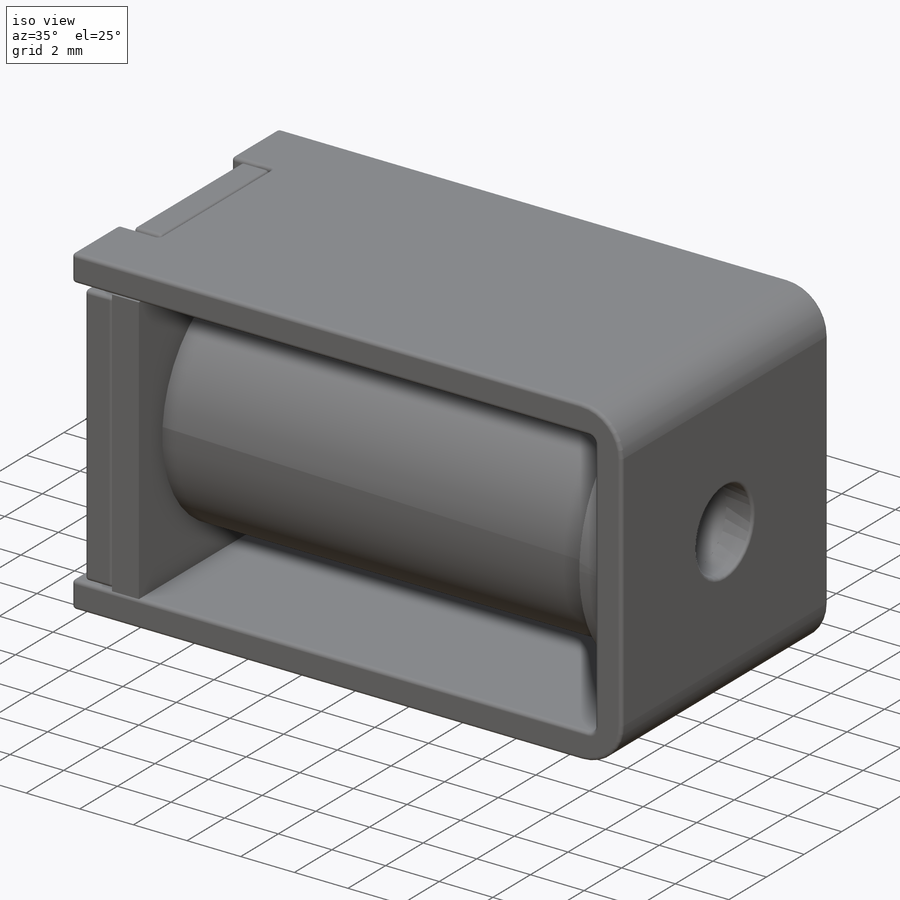
[diagram: iso view]
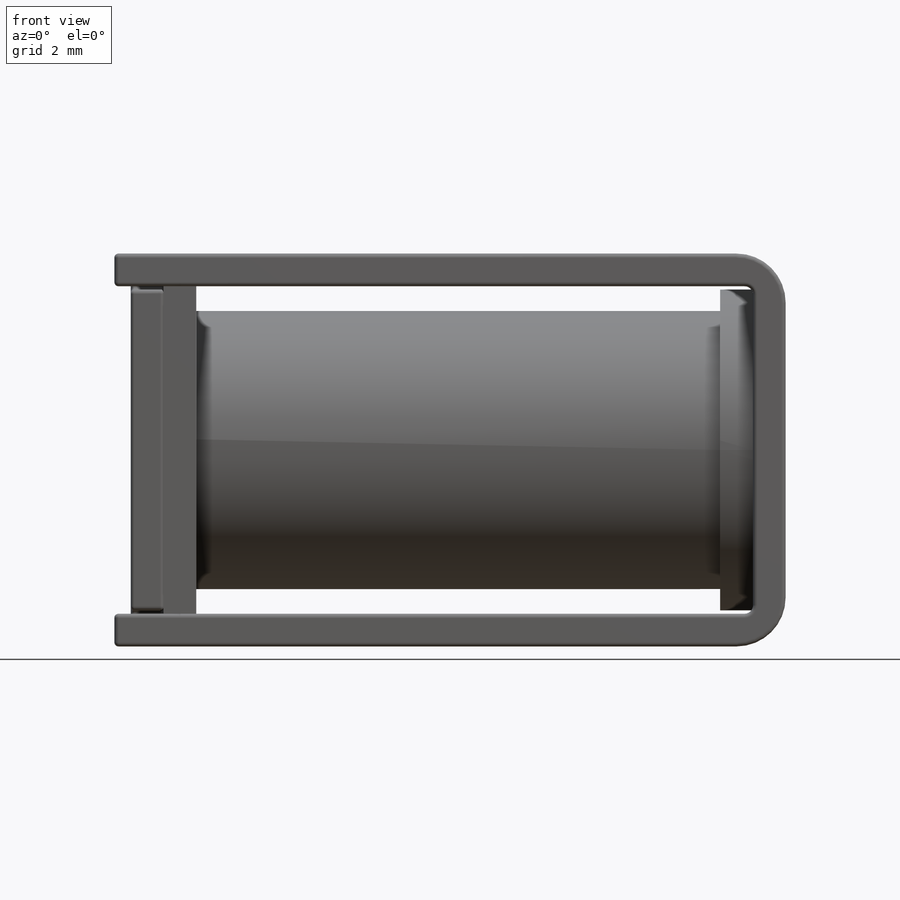
[diagram: front view]
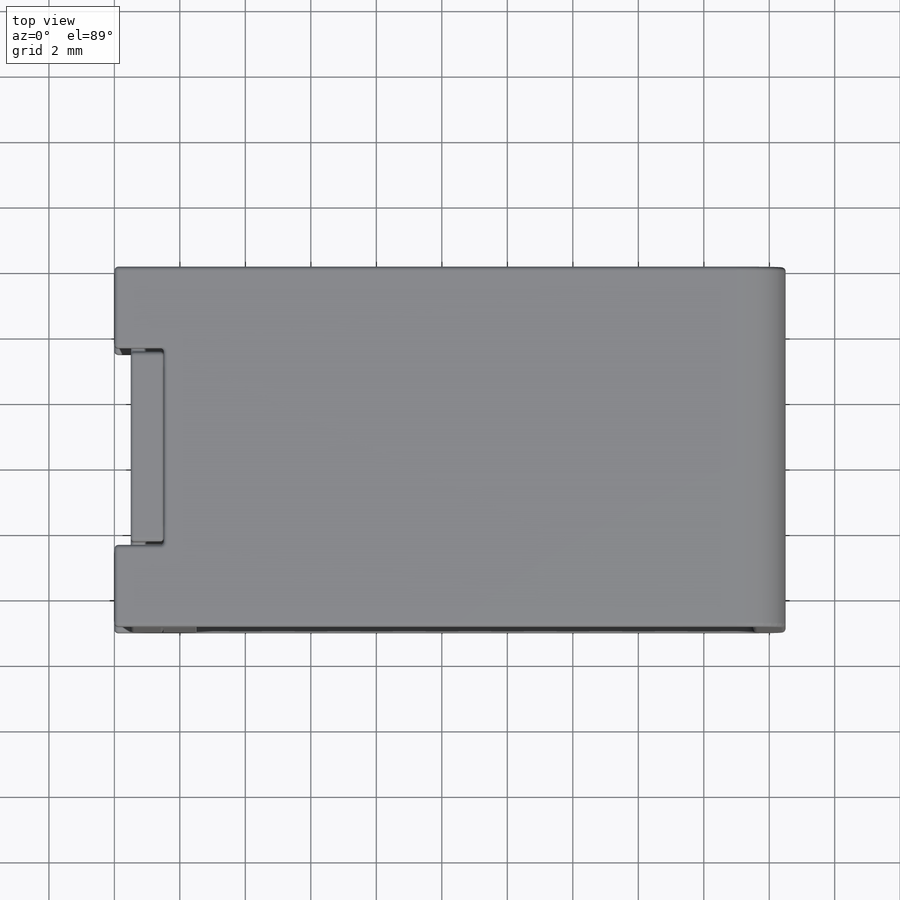
[diagram: top view]
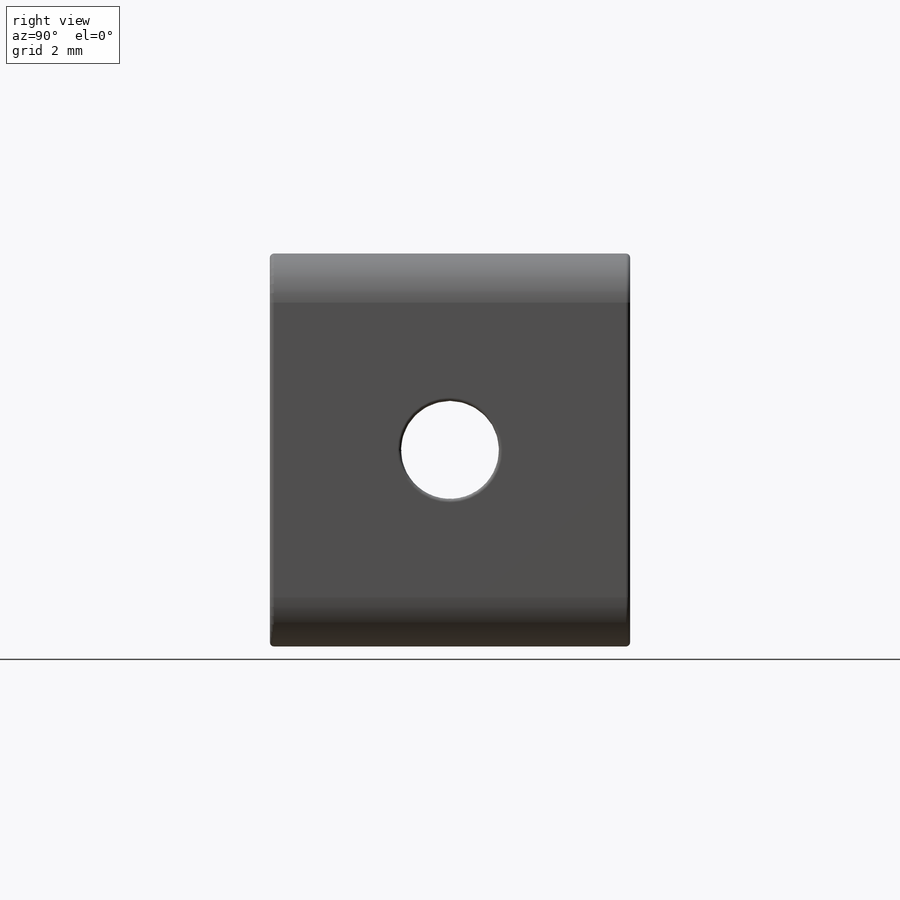
[diagram: right view]
SOLIDWORKS PART (.sldprt)
format: sldprt  version: not decoded by parser v0  size: 729,088 bytes
history: native  units: mm
features: fillet x10, sketch x8, extrude x5, cut_extrude x3, material x1 (+12 scaffold rows collapsed)
feature tree (39):
  scaffold x12  (default folders/planes/origin — collapsed)
  material  "Material <not specified>"
  sketch  "Sketch1"  dims[D1=20.5mm D2=12.0mm D3=1.0mm D4=1.0mm]
  extrude  "Boss-Extrude1"  Depth=11mm
  sketch  "Sketch2"  dims[c1.D1=6.0mm c1.D2=~1.771901mm c1.D3=~3.228099mm c2.D1=3.0mm c2.D2=1.0mm c2.D3=5.5mm c3.D2=2.5mm c3.D3=1.0mm c3.D4=3.0mm c3.D1=3.0mm c4.D4=6.0mm c4.D5=~5.963785mm]
  cut_extrude  "Cut-Extrude1"  Depth=1.5mm
  sketch  "Sketch3"  dims[D1=0.1mm D2=0.1mm D3=0.1mm D4=0.1mm]
  extrude  "Boss-Extrude2"  Depth=1mm
  fillet  "Fillet1"  Radius=0.125mm
  fillet  "Fillet2"  Radius=0.1mm
  fillet  "Fillet3"  Radius=0.1mm
  fillet  "Fillet4"  Radius=0.1mm
  fillet  "Fillet6"  Radius=0.1mm
  fillet  "Fillet8"  Radius=1.5mm
  fillet  "Fillet9"  Radius=0.25mm
  fillet  "Fillet10"  Radius=0.125mm
  sketch  "Sketch4"  dims[D1=10.0mm D2=11.0mm]
  extrude  "Boss-Extrude3"  Depth=1mm
  sketch  "Sketch6"  dims[D1=~1.945926mm]
  cut_extrude  "Cut-Extrude3"  Depth=2mm
  sketch  "Sketch7"  dims[c1.D1=9.8mm c1.D2=9.8mm c1.D3=9.8mm c2.D2=5.5mm c2.D3=6.0mm]
  extrude  "Boss-Extrude4"  Depth=1mm
  sketch  "Sketch8"  dims[c1.D1=8.5mm c1.D2=8.5mm c1.D3=8.5mm c2.D2=5.5mm c2.D3=6.0mm]
  extrude  "Boss-Extrude5"  [1 undecoded]
  sketch  "Sketch9"  dims[D1=~1.714596mm]
  cut_extrude  "Cut-Extrude4"  [1 undecoded]
  fillet  "Fillet14"  Radius=0.1mm
  fillet  "Fillet15"  Radius=0.1mm
decode coverage: 24 of 26 modeling features carry decoded parameters
note: ~ marks probable driven/reference dimensions
note: 2 parameter values undecoded
note: suppression state not decoded; provenance and decode notes live in map.json
